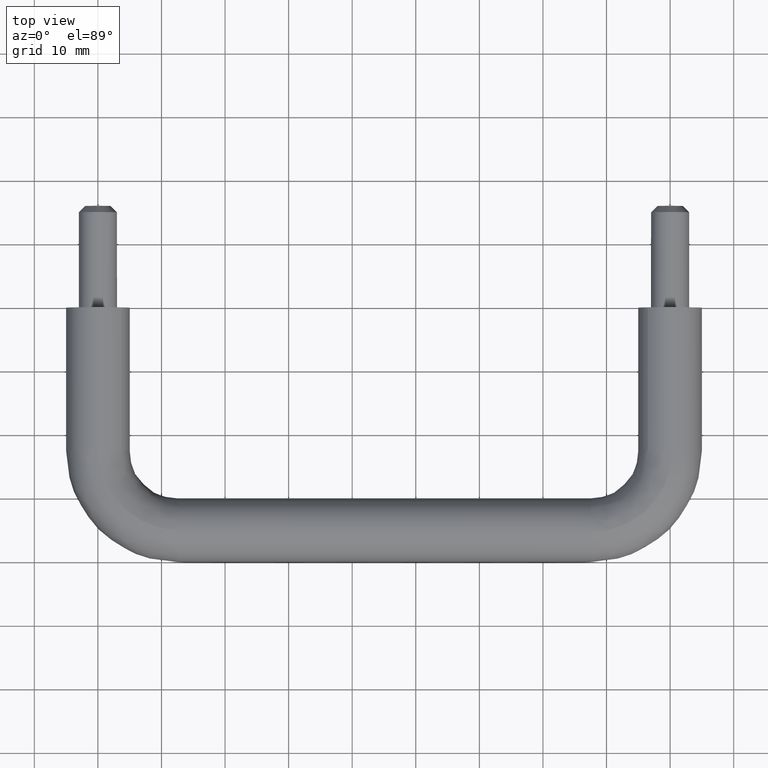
[diagram: clean part render]
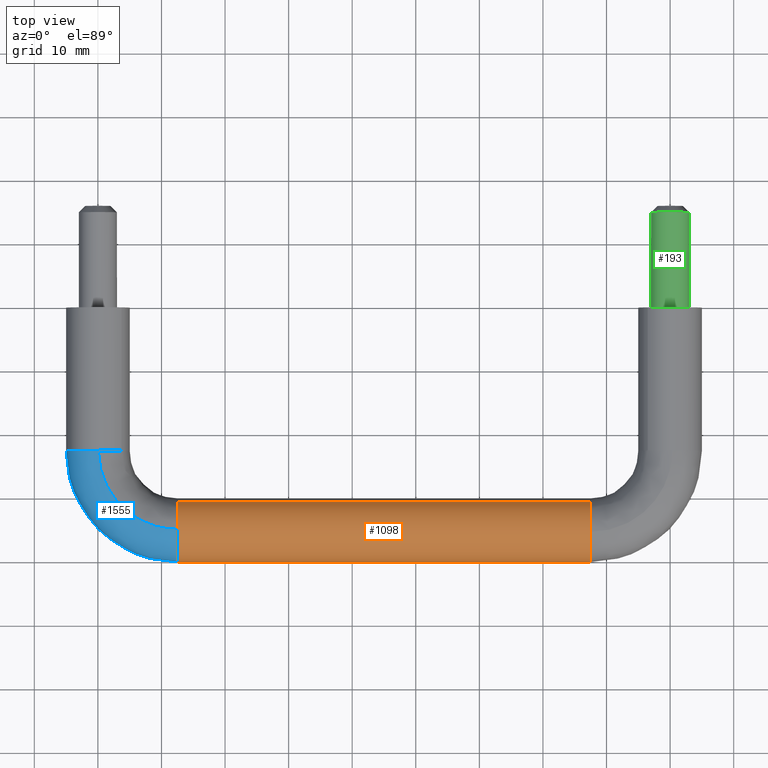
[diagram: same view with three faces highlighted in distinct colors, each labeled with its STEP entity id]
A machine part, top view with three faces highlighted in distinct colors.
Their STEP definitions:

[orange] entity #1098 — the highlighted face is a freeform B-spline surface patch.
#928=CARTESIAN_POINT('',(10.874999999495580,-30.521972536820851,2.224245948408881));
#929=CARTESIAN_POINT('',(10.874999999495580,-30.856101220587441,2.896940181352409));
#930=CARTESIAN_POINT('',(10.874999999495580,-31.373128144938558,3.441772878468769));
#931=CARTESIAN_POINT('',(10.874999999495580,-34.814901023407330,7.068644733530205));
#932=CARTESIAN_POINT('',(10.874999999495580,-38.441772878468768,3.626871855061437));
#933=CARTESIAN_POINT('',(10.874999999495580,-42.068644733530206,0.185098976592668));
#934=CARTESIAN_POINT('',(10.874999999495580,-38.626871855061438,-3.441772878468769));
#935=CARTESIAN_POINT('',(10.874999999495580,-35.185098976592663,-7.068644733530205));
#936=CARTESIAN_POINT('',(10.874999999495580,-31.558227121531232,-3.626871855061437));
#937=CARTESIAN_POINT('',(79.165625002282297,-30.521972536820840,2.224245948408881));
#938=CARTESIAN_POINT('',(79.165625002282297,-30.856101220587430,2.896940181352409));
#939=CARTESIAN_POINT('',(79.165625002282297,-31.373128144938558,3.441772878468769));
#940=CARTESIAN_POINT('',(79.165625002282297,-34.814901023407316,7.068644733530205));
#941=CARTESIAN_POINT('',(79.165625002282297,-38.441772878468761,3.626871855061437));
#942=CARTESIAN_POINT('',(79.165625002282297,-42.068644733530206,0.185098976592668));
#943=CARTESIAN_POINT('',(79.165625002282297,-38.626871855061431,-3.441772878468769));
#944=CARTESIAN_POINT('',(79.165625002282297,-35.185098976592663,-7.068644733530205));
#945=CARTESIAN_POINT('',(79.165625002282297,-31.558227121531232,-3.626871855061437));
#953=(BOUNDED_SURFACE()B_SPLINE_SURFACE(2,1,((#928,#937),(#929,#938),(#930,#939),(#931,#940),(#932,#941),(#933,#942),(#934,#943),(#935,#944),(#936,#945)),.UNSPECIFIED.,.F.,.F.,.U.)B_SPLINE_SURFACE_WITH_KNOTS((3,2,2,2,3),(2,2),(0.0,1.656854249492380,9.941125496954278,18.225396744416180,26.509667991878079),(0.0,68.290625002786726),.UNSPECIFIED.)GEOMETRIC_REPRESENTATION_ITEM()RATIONAL_B_SPLINE_SURFACE(((0.906274169979695,0.906274169979695),(0.941421356237309,0.941421356237309),(1.0,1.0),(0.707106781186548,0.707106781186548),(1.0,1.0),(0.707106781186548,0.707106781186548),(1.0,1.0),(0.707106781186548,0.707106781186548),(1.0,1.0)))REPRESENTATION_ITEM('')SURFACE());
#954=CARTESIAN_POINT('',(77.500000000000028,-30.521972536830301,2.224245948427894));
#955=VERTEX_POINT('',#954);
#956=CARTESIAN_POINT('',(77.500000002214335,-35.348666259479671,4.987828369090145));
#957=VERTEX_POINT('',#956);
#958=CARTESIAN_POINT('',(77.500000000000014,-30.521972536830297,2.224245948427894));
#959=CARTESIAN_POINT('',(77.500000000000014,-31.900695591542707,5.000000000000001));
#960=CARTESIAN_POINT('',(77.500000000000000,-35.0,5.0));
#961=CARTESIAN_POINT('',(77.500000000000014,-35.174545580981878,5.0));
#962=CARTESIAN_POINT('',(77.500000002214335,-35.348666259479671,4.987828369090145));
#970=(BOUNDED_CURVE()B_SPLINE_CURVE(2,(#958,#959,#960,#961,#962),.UNSPECIFIED.,.F.,.U.)B_SPLINE_CURVE_WITH_KNOTS((3,2,3),(0.575619190623714,0.750000000000000,0.762166313575372),.UNSPECIFIED.)CURVE()GEOMETRIC_REPRESENTATION_ITEM()RATIONAL_B_SPLINE_CURVE((0.876408099967338,0.795700173769938,1.0,0.985746277023262,0.972879876153337))REPRESENTATION_ITEM(''));
#971=EDGE_CURVE('',#955,#957,#970,.T.);
#972=ORIENTED_EDGE('',*,*,#971,.F.);
#973=CARTESIAN_POINT('',(12.499999999953680,-30.521972536862169,2.224245948412617));
#974=VERTEX_POINT('',#973);
#975=CARTESIAN_POINT('',(12.499999999953680,-30.521972536862169,2.224245948412617));
#976=CARTESIAN_POINT('',(77.500000000000028,-30.521972536830301,2.224245948427894));
#977=QUASI_UNIFORM_CURVE('',1,(#975,#976),.UNSPECIFIED.,.F.,.U.);
#978=EDGE_CURVE('',#974,#955,#977,.T.);
#979=ORIENTED_EDGE('',*,*,#978,.F.);
#980=CARTESIAN_POINT('',(12.499999999561890,-34.937169799832191,4.999605221009642));
#981=VERTEX_POINT('',#980);
#982=CARTESIAN_POINT('',(12.499999999953678,-30.521972536862165,2.224245948412617));
#983=CARTESIAN_POINT('',(12.499999999833049,-31.881425326449012,4.961203581133596));
#984=CARTESIAN_POINT('',(12.499999999561895,-34.937169799832198,4.999605221009642));
#992=(BOUNDED_CURVE()B_SPLINE_CURVE(2,(#982,#983,#984),.UNSPECIFIED.,.F.,.U.)B_SPLINE_CURVE_WITH_KNOTS((3,3),(0.575619190622622,0.747784295868891),.UNSPECIFIED.)CURVE()GEOMETRIC_REPRESENTATION_ITEM()RATIONAL_B_SPLINE_CURVE((0.876408099968349,0.796725658660789,0.994854295522402))REPRESENTATION_ITEM(''));
#993=EDGE_CURVE('',#974,#981,#992,.T.);
#994=ORIENTED_EDGE('',*,*,#993,.T.);
#995=CARTESIAN_POINT('',(12.500000000000000,-40.0,0.0));
#996=VERTEX_POINT('',#995);
#997=CARTESIAN_POINT('',(12.499999999561897,-34.937169799832191,4.999605221009642));
#998=CARTESIAN_POINT('',(12.500000000000004,-34.968583659289422,5.0));
#999=CARTESIAN_POINT('',(12.500000000000000,-35.0,5.0));
#1000=CARTESIAN_POINT('',(12.500000000000000,-39.999999999999993,5.000000000000001));
#1001=CARTESIAN_POINT('',(12.500000000000000,-40.0,0.0));
#1009=(BOUNDED_CURVE()B_SPLINE_CURVE(2,(#997,#998,#999,#1000,#1001),.UNSPECIFIED.,.F.,.U.)B_SPLINE_CURVE_WITH_KNOTS((3,2,3),(0.747784295868891,0.750000000000000,1.0),.UNSPECIFIED.)CURVE()GEOMETRIC_REPRESENTATION_ITEM()RATIONAL_B_SPLINE_CURVE((0.994854295522401,0.997404141140404,1.0,0.707106781186548,1.0))REPRESENTATION_ITEM(''));
#1010=EDGE_CURVE('',#981,#996,#1009,.T.);
#1011=ORIENTED_EDGE('',*,*,#1010,.T.);
#1012=CARTESIAN_POINT('',(12.499999999937820,-35.348666258244499,-4.987828369176487));
#1013=VERTEX_POINT('',#1012);
#1014=CARTESIAN_POINT('',(12.500000000000000,-40.0,0.0));
#1015=CARTESIAN_POINT('',(12.499999999999998,-40.000000000000007,-4.662684235644725));
#1016=CARTESIAN_POINT('',(12.499999999937819,-35.348666258244492,-4.987828369176487));
#1024=(BOUNDED_CURVE()B_SPLINE_CURVE(2,(#1014,#1015,#1016),.UNSPECIFIED.,.F.,.U.)B_SPLINE_CURVE_WITH_KNOTS((3,3),(0.0,0.237833686509806),.UNSPECIFIED.)CURVE()GEOMETRIC_REPRESENTATION_ITEM()RATIONAL_B_SPLINE_CURVE((1.0,0.721360504063494,0.972879876333494))REPRESENTATION_ITEM(''));
#1025=EDGE_CURVE('',#996,#1013,#1024,.T.);
#1026=ORIENTED_EDGE('',*,*,#1025,.T.);
#1027=CARTESIAN_POINT('',(12.500000000000000,-31.558228069350712,-3.626872754508066));
#1028=VERTEX_POINT('',#1027);
#1029=CARTESIAN_POINT('',(12.499999999937817,-35.348666258244492,-4.987828369176487));
#1030=CARTESIAN_POINT('',(12.499999999999995,-35.174545579742194,-5.000000000000001));
#1031=CARTESIAN_POINT('',(12.500000000000000,-35.0,-5.0));
#1032=CARTESIAN_POINT('',(12.499999999999995,-33.005203027452310,-5.0));
#1033=CARTESIAN_POINT('',(12.500000000000007,-31.558228069350704,-3.626872754508066));
#1041=(BOUNDED_CURVE()B_SPLINE_CURVE(2,(#1029,#1030,#1031,#1032,#1033),.UNSPECIFIED.,.F.,.U.)B_SPLINE_CURVE_WITH_KNOTS((3,2,3),(0.237833686509806,0.250000000000000,0.371049487220299),.UNSPECIFIED.)CURVE()GEOMETRIC_REPRESENTATION_ITEM()RATIONAL_B_SPLINE_CURVE((0.972879876333494,0.985746277123054,1.0,0.858181704209315,0.853699664289983))REPRESENTATION_ITEM(''));
#1042=EDGE_CURVE('',#1013,#1028,#1041,.T.);
#1043=ORIENTED_EDGE('',*,*,#1042,.T.);
#1044=CARTESIAN_POINT('',(77.500000000186986,-31.558227959531859,-3.626872650146366));
#1045=VERTEX_POINT('',#1044);
#1046=CARTESIAN_POINT('',(12.500000000000000,-31.558228069350712,-3.626872754508066));
#1047=CARTESIAN_POINT('',(77.500000000186986,-31.558227959531859,-3.626872650146366));
#1048=QUASI_UNIFORM_CURVE('',1,(#1046,#1047),.UNSPECIFIED.,.F.,.U.);
#1049=EDGE_CURVE('',#1028,#1045,#1048,.T.);
#1050=ORIENTED_EDGE('',*,*,#1049,.T.);
#1051=CARTESIAN_POINT('',(77.500000000592394,-34.937169799584353,-4.999605221006526));
#1052=VERTEX_POINT('',#1051);
#1053=CARTESIAN_POINT('',(77.500000000592394,-34.937169799584353,-4.999605221006526));
#1054=CARTESIAN_POINT('',(77.500000000357417,-32.978853147400088,-4.974994991948138));
#1055=CARTESIAN_POINT('',(77.500000000186972,-31.558227959531862,-3.626872650146367));
#1063=(BOUNDED_CURVE()B_SPLINE_CURVE(2,(#1053,#1054,#1055),.UNSPECIFIED.,.F.,.U.)B_SPLINE_CURVE_WITH_KNOTS((3,3),(0.252215704148546,0.371049491799913),.UNSPECIFIED.)CURVE()GEOMETRIC_REPRESENTATION_ITEM()RATIONAL_B_SPLINE_CURVE((0.994854295482269,0.858099659149629,0.853699663950849))REPRESENTATION_ITEM(''));
#1064=EDGE_CURVE('',#1052,#1045,#1063,.T.);
#1065=ORIENTED_EDGE('',*,*,#1064,.F.);
#1066=CARTESIAN_POINT('',(77.500000000000000,-40.0,0.0));
#1067=VERTEX_POINT('',#1066);
#1068=CARTESIAN_POINT('',(77.500000000000000,-40.0,0.0));
#1069=CARTESIAN_POINT('',(77.500000000000014,-39.999999999999993,-5.000000000000001));
#1070=CARTESIAN_POINT('',(77.500000000000000,-35.0,-5.0));
#1071=CARTESIAN_POINT('',(77.500000000000000,-34.968583659041542,-4.999999999999999));
#1072=CARTESIAN_POINT('',(77.500000000592394,-34.937169799584353,-4.999605221006526));
#1080=(BOUNDED_CURVE()B_SPLINE_CURVE(2,(#1068,#1069,#1070,#1071,#1072),.UNSPECIFIED.,.F.,.U.)B_SPLINE_CURVE_WITH_KNOTS((3,2,3),(0.0,0.250000000000000,0.252215704148546),.UNSPECIFIED.)CURVE()GEOMETRIC_REPRESENTATION_ITEM()RATIONAL_B_SPLINE_CURVE((1.0,0.707106781186548,1.0,0.997404141119977,0.994854295482269))REPRESENTATION_ITEM(''));
#1081=EDGE_CURVE('',#1067,#1052,#1080,.T.);
#1082=ORIENTED_EDGE('',*,*,#1081,.F.);
#1083=CARTESIAN_POINT('',(77.500000002214335,-35.348666259479678,4.987828369090145));
#1084=CARTESIAN_POINT('',(77.500000000000000,-39.999999999999993,4.662684233329788));
#1085=CARTESIAN_POINT('',(77.500000000000000,-40.0,0.0));
#1093=(BOUNDED_CURVE()B_SPLINE_CURVE(2,(#1083,#1084,#1085),.UNSPECIFIED.,.F.,.U.)B_SPLINE_CURVE_WITH_KNOTS((3,3),(0.762166313575372,1.0),.UNSPECIFIED.)CURVE()GEOMETRIC_REPRESENTATION_ITEM()RATIONAL_B_SPLINE_CURVE((0.972879876153335,0.721360504163286,1.0))REPRESENTATION_ITEM(''));
#1094=EDGE_CURVE('',#957,#1067,#1093,.T.);
#1095=ORIENTED_EDGE('',*,*,#1094,.F.);
#1096=EDGE_LOOP('',(#972,#979,#994,#1011,#1026,#1043,#1050,#1065,#1082,#1095));
#1097=FACE_OUTER_BOUND('',#1096,.T.);
#1098=ADVANCED_FACE('',(#1097),#953,.T.);

[blue] entity #1555 — the highlighted face is a freeform B-spline surface patch.
#980=CARTESIAN_POINT('',(12.499999999561890,-34.937169799832191,4.999605221009642));
#981=VERTEX_POINT('',#980);
#995=CARTESIAN_POINT('',(12.500000000000000,-40.0,0.0));
#996=VERTEX_POINT('',#995);
#997=CARTESIAN_POINT('',(12.499999999561897,-34.937169799832191,4.999605221009642));
#998=CARTESIAN_POINT('',(12.500000000000004,-34.968583659289422,5.0));
#999=CARTESIAN_POINT('',(12.500000000000000,-35.0,5.0));
#1000=CARTESIAN_POINT('',(12.500000000000000,-39.999999999999993,5.000000000000001));
#1001=CARTESIAN_POINT('',(12.500000000000000,-40.0,0.0));
#1009=(BOUNDED_CURVE()B_SPLINE_CURVE(2,(#997,#998,#999,#1000,#1001),.UNSPECIFIED.,.F.,.U.)B_SPLINE_CURVE_WITH_KNOTS((3,2,3),(0.747784295868891,0.750000000000000,1.0),.UNSPECIFIED.)CURVE()GEOMETRIC_REPRESENTATION_ITEM()RATIONAL_B_SPLINE_CURVE((0.994854295522401,0.997404141140404,1.0,0.707106781186548,1.0))REPRESENTATION_ITEM(''));
#1010=EDGE_CURVE('',#981,#996,#1009,.T.);
#1012=CARTESIAN_POINT('',(12.499999999937820,-35.348666258244499,-4.987828369176487));
#1013=VERTEX_POINT('',#1012);
#1014=CARTESIAN_POINT('',(12.500000000000000,-40.0,0.0));
#1015=CARTESIAN_POINT('',(12.499999999999998,-40.000000000000007,-4.662684235644725));
#1016=CARTESIAN_POINT('',(12.499999999937819,-35.348666258244492,-4.987828369176487));
#1024=(BOUNDED_CURVE()B_SPLINE_CURVE(2,(#1014,#1015,#1016),.UNSPECIFIED.,.F.,.U.)B_SPLINE_CURVE_WITH_KNOTS((3,3),(0.0,0.237833686509806),.UNSPECIFIED.)CURVE()GEOMETRIC_REPRESENTATION_ITEM()RATIONAL_B_SPLINE_CURVE((1.0,0.721360504063494,0.972879876333494))REPRESENTATION_ITEM(''));
#1025=EDGE_CURVE('',#996,#1013,#1024,.T.);
#1291=CARTESIAN_POINT('',(-0.348666258442994,-22.500000000118920,-4.987828369162610));
#1292=VERTEX_POINT('',#1291);
#1308=CARTESIAN_POINT('',(-4.999999999999997,-22.500000000000000,0.0));
#1309=VERTEX_POINT('',#1308);
#1310=CARTESIAN_POINT('',(-4.999999999999997,-22.500000000000000,0.0));
#1311=CARTESIAN_POINT('',(-4.999999999999996,-22.500000000000000,-4.662684235272704));
#1312=CARTESIAN_POINT('',(-0.348666258442994,-22.500000000118924,-4.987828369162610));
#1320=(BOUNDED_CURVE()B_SPLINE_CURVE(2,(#1310,#1311,#1312),.UNSPECIFIED.,.F.,.U.)B_SPLINE_CURVE_WITH_KNOTS((3,3),(0.0,0.237833686496117),.UNSPECIFIED.)CURVE()GEOMETRIC_REPRESENTATION_ITEM()RATIONAL_B_SPLINE_CURVE((1.0,0.721360504079531,0.972879876304542))REPRESENTATION_ITEM(''));
#1321=EDGE_CURVE('',#1309,#1292,#1320,.T.);
#1323=CARTESIAN_POINT('',(0.062830200757490,-22.500000000747580,4.999605221002231));
#1324=VERTEX_POINT('',#1323);
#1325=CARTESIAN_POINT('',(0.062830200757490,-22.500000000747587,4.999605221002231));
#1326=CARTESIAN_POINT('',(0.031416341300333,-22.500000000000004,4.999999999999999));
#1327=CARTESIAN_POINT('',(2.755364E-015,-22.500000000000000,5.0));
#1328=CARTESIAN_POINT('',(-4.999999999999997,-22.500000000000000,5.000000000000001));
#1329=CARTESIAN_POINT('',(-4.999999999999997,-22.500000000000000,0.0));
#1337=(BOUNDED_CURVE()B_SPLINE_CURVE(2,(#1325,#1326,#1327,#1328,#1329),.UNSPECIFIED.,.F.,.U.)B_SPLINE_CURVE_WITH_KNOTS((3,2,3),(0.747784295827405,0.750000000000000,1.0),.UNSPECIFIED.)CURVE()GEOMETRIC_REPRESENTATION_ITEM()RATIONAL_B_SPLINE_CURVE((0.994854295426917,0.997404141091801,1.0,0.707106781186548,1.0))REPRESENTATION_ITEM(''));
#1338=EDGE_CURVE('',#1324,#1309,#1337,.T.);
#1494=CARTESIAN_POINT('',(-0.246043598944643,-21.616309977390664,-4.992863235060632));
#1495=CARTESIAN_POINT('',(-1.262163499757615,-36.272476988617520,-4.992863235060630));
#1496=CARTESIAN_POINT('',(13.393238194958149,-35.245378025359820,-4.992863235060632));
#1497=CARTESIAN_POINT('',(-0.281871249908219,-21.613826027179417,-4.990352747809004));
#1498=CARTESIAN_POINT('',(-1.300847345968043,-36.311189824849528,-4.990352747809002));
#1499=CARTESIAN_POINT('',(13.395748983974981,-35.281203805473211,-4.990352747809003));
#1500=CARTESIAN_POINT('',(-5.016890184537566,-21.285544630923653,-4.658564189198486));
#1501=CARTESIAN_POINT('',(-6.413343960855873,-41.427517790591814,-4.658564189198486));
#1502=CARTESIAN_POINT('',(13.727577424182968,-40.015975486631149,-4.658564189198487));
#1503=CARTESIAN_POINT('',(-4.957698358406729,-21.289648431900471,0.062830199416762));
#1504=CARTESIAN_POINT('',(-6.349433337709312,-41.363559272250576,0.062830199416762));
#1505=CARTESIAN_POINT('',(13.723429282093315,-39.956786751382239,0.062830199416762));
#1506=CARTESIAN_POINT('',(-4.895018620471904,-21.293994051668907,5.062435420435840));
#1507=CARTESIAN_POINT('',(-6.281756744978027,-41.295831962073215,5.062435420435841));
#1508=CARTESIAN_POINT('',(13.719036708386920,-39.894110286461306,5.062435420435841));
#1509=CARTESIAN_POINT('',(0.127900379634209,-21.642235713507890,4.999160710041827));
#1510=CARTESIAN_POINT('',(-0.858408551565055,-35.868419462842546,4.999160710041827));
#1511=CARTESIAN_POINT('',(13.367032334147423,-34.871453573407599,4.999160710041828));
#1512=CARTESIAN_POINT('',(0.162980664512476,-21.644667848428536,4.998718796710921));
#1513=CARTESIAN_POINT('',(-0.820531651775323,-35.830514177764115,4.998718796710921));
#1514=CARTESIAN_POINT('',(13.364573920279618,-34.836375120353509,4.998718796710921));
#1522=(BOUNDED_SURFACE()B_SPLINE_SURFACE(2,2,((#1494,#1497,#1500,#1503,#1506,#1509,#1512),(#1495,#1498,#1501,#1504,#1507,#1510,#1513),(#1496,#1499,#1502,#1505,#1508,#1511,#1514)),.UNSPECIFIED.,.F.,.F.,.U.)B_SPLINE_SURFACE_WITH_KNOTS((3,3),(3,1,2,1,3),(0.0,31.890571891225530),(0.0,0.083144420401435,8.036044817964854,16.320316065426749,16.403446091938751),.UNSPECIFIED.)GEOMETRIC_REPRESENTATION_ITEM()RATIONAL_B_SPLINE_SURFACE(((0.905744038428786,0.903251937573323,0.662386295974072,0.921487970695580,0.651590392860676,0.924196307027254,0.926904643358928),(0.591078789901803,0.589452471763937,0.432266152092013,0.601353110281207,0.425220862167464,0.603120541358479,0.604887972435751),(0.895737634068972,0.893273065240005,0.655068439230114,0.911307631818076,0.644391806205615,0.913986047214776,0.916664462611475)))REPRESENTATION_ITEM('')SURFACE());
#1523=ORIENTED_EDGE('',*,*,#1025,.F.);
#1524=ORIENTED_EDGE('',*,*,#1010,.F.);
#1525=CARTESIAN_POINT('',(0.062830200757490,-22.500000000747580,4.999605221002231));
#1526=CARTESIAN_POINT('',(0.062830200911937,-34.937169799707000,4.999605221019078));
#1527=CARTESIAN_POINT('',(12.499999999561899,-34.937169799832198,4.999605221009642));
#1535=(BOUNDED_CURVE()B_SPLINE_CURVE(2,(#1525,#1526,#1527),.UNSPECIFIED.,.F.,.U.)B_SPLINE_CURVE_WITH_KNOTS((3,3),(-1.747842683543663,-0.278273131019156),.UNSPECIFIED.)CURVE()GEOMETRIC_REPRESENTATION_ITEM()RATIONAL_B_SPLINE_CURVE((0.893710737918789,0.628668022924493,0.884455039429879))REPRESENTATION_ITEM(''));
#1536=EDGE_CURVE('',#1324,#981,#1535,.T.);
#1537=ORIENTED_EDGE('',*,*,#1536,.F.);
#1538=ORIENTED_EDGE('',*,*,#1338,.T.);
#1539=ORIENTED_EDGE('',*,*,#1321,.T.);
#1540=CARTESIAN_POINT('',(-0.348666258442994,-22.500000000118920,-4.987828369162610));
#1541=CARTESIAN_POINT('',(-0.348666257639366,-35.348666257752846,-4.987828369202161));
#1542=CARTESIAN_POINT('',(12.499999999937815,-35.348666258244499,-4.987828369176488));
#1550=(BOUNDED_CURVE()B_SPLINE_CURVE(2,(#1540,#1541,#1542),.UNSPECIFIED.,.F.,.U.)B_SPLINE_CURVE_WITH_KNOTS((3,3),(-1.747842683649903,-0.278273130956331),.UNSPECIFIED.)CURVE()GEOMETRIC_REPRESENTATION_ITEM()RATIONAL_B_SPLINE_CURVE((0.873607430585968,0.614526639153945,0.864559931606567))REPRESENTATION_ITEM(''));
#1551=EDGE_CURVE('',#1292,#1013,#1550,.T.);
#1552=ORIENTED_EDGE('',*,*,#1551,.T.);
#1553=EDGE_LOOP('',(#1523,#1524,#1537,#1538,#1539,#1552));
#1554=FACE_OUTER_BOUND('',#1553,.T.);
#1555=ADVANCED_FACE('',(#1554),#1522,.T.);

[green] entity #193 — the highlighted face is a freeform B-spline surface patch.
#44=CARTESIAN_POINT('',(92.281217896800086,15.374999999999821,-1.948344144990550));
#45=CARTESIAN_POINT('',(94.229562041790643,15.374999999999831,0.332873751809542));
#46=CARTESIAN_POINT('',(91.948344144990557,15.374999999999821,2.281217896800092));
#47=CARTESIAN_POINT('',(89.667126248190485,15.374999999999817,4.229562041790642));
#48=CARTESIAN_POINT('',(87.718782103199914,15.374999999999821,1.948344144990550));
#49=CARTESIAN_POINT('',(85.770437958209357,15.374999999999817,-0.332873751809542));
#50=CARTESIAN_POINT('',(88.051655855009443,15.374999999999821,-2.281217896800092));
#51=CARTESIAN_POINT('',(92.281217896800101,-0.384374999999986,-1.948344144990550));
#52=CARTESIAN_POINT('',(94.229562041790658,-0.384374999999984,0.332873751809542));
#53=CARTESIAN_POINT('',(91.948344144990571,-0.384374999999986,2.281217896800092));
#54=CARTESIAN_POINT('',(89.667126248190485,-0.384374999999988,4.229562041790642));
#55=CARTESIAN_POINT('',(87.718782103199928,-0.384374999999990,1.948344144990550));
#56=CARTESIAN_POINT('',(85.770437958209357,-0.384374999999992,-0.332873751809542));
#57=CARTESIAN_POINT('',(88.051655855009457,-0.384374999999990,-2.281217896800092));
#65=(BOUNDED_SURFACE()B_SPLINE_SURFACE(2,1,((#44,#51),(#45,#52),(#46,#53),(#47,#54),(#48,#55),(#49,#56),(#50,#57)),.UNSPECIFIED.,.F.,.F.,.U.)B_SPLINE_SURFACE_WITH_KNOTS((3,2,2,3),(2,2),(0.0,4.970562748477141,9.941125496954282,14.911688245431421),(0.0,15.759374999999810),.UNSPECIFIED.)GEOMETRIC_REPRESENTATION_ITEM()RATIONAL_B_SPLINE_SURFACE(((1.0,1.0),(0.707106781186548,0.707106781186548),(1.0,1.0),(0.707106781186548,0.707106781186548),(1.0,1.0),(0.707106781186548,0.707106781186548),(1.0,1.0)))REPRESENTATION_ITEM('')SURFACE());
#66=CARTESIAN_POINT('',(93.0,1.040834E-014,0.0));
#67=VERTEX_POINT('',#66);
#68=CARTESIAN_POINT('',(92.281218231411302,5.787038E-015,-1.948343753211020));
#69=VERTEX_POINT('',#68);
#70=CARTESIAN_POINT('',(93.0,1.040834E-014,0.0));
#71=CARTESIAN_POINT('',(93.0,1.040834E-014,-1.106757845982614));
#72=CARTESIAN_POINT('',(92.281218231411302,5.787038E-015,-1.948343753211020));
#80=(BOUNDED_CURVE()B_SPLINE_CURVE(2,(#70,#71,#72),.UNSPECIFIED.,.F.,.U.)B_SPLINE_CURVE_WITH_KNOTS((3,3),(0.0,0.113143109441826),.UNSPECIFIED.)CURVE()GEOMETRIC_REPRESENTATION_ITEM()RATIONAL_B_SPLINE_CURVE((1.0,0.867444601956084,0.854871043176068))REPRESENTATION_ITEM(''));
#81=EDGE_CURVE('',#67,#69,#80,.T.);
#82=ORIENTED_EDGE('',*,*,#81,.T.);
#83=CARTESIAN_POINT('',(92.281218227280988,14.999999999999821,-1.948343758047013));
#84=VERTEX_POINT('',#83);
#85=CARTESIAN_POINT('',(92.281218227280988,14.999999999999821,-1.948343758047013));
#86=CARTESIAN_POINT('',(92.281218231411302,5.787038E-015,-1.948343753211020));
#87=QUASI_UNIFORM_CURVE('',1,(#85,#86),.UNSPECIFIED.,.F.,.U.);
#88=EDGE_CURVE('',#84,#69,#87,.T.);
#89=ORIENTED_EDGE('',*,*,#88,.F.);
#90=CARTESIAN_POINT('',(92.990752001225701,14.999999999934600,0.235377287681659));
#91=VERTEX_POINT('',#90);
#92=CARTESIAN_POINT('',(92.990752001225701,14.999999999934596,0.235377287681659));
#93=CARTESIAN_POINT('',(93.0,14.999999999999828,0.117870321518296));
#94=CARTESIAN_POINT('',(93.0,14.999999999999821,0.0));
#95=CARTESIAN_POINT('',(92.999999999999986,14.999999999999824,-1.106757853207942));
#96=CARTESIAN_POINT('',(92.281218227280974,14.999999999999822,-1.948343758047013));
#104=(BOUNDED_CURVE()B_SPLINE_CURVE(2,(#92,#93,#94,#95,#96),.UNSPECIFIED.,.F.,.U.)B_SPLINE_CURVE_WITH_KNOTS((3,2,3),(0.736331300576251,0.750000000000000,0.863143110082556),.UNSPECIFIED.)CURVE()GEOMETRIC_REPRESENTATION_ITEM()RATIONAL_B_SPLINE_CURVE((0.969723356053872,0.983986122515139,1.0,0.867444601205422,0.854871043033660))REPRESENTATION_ITEM(''));
#105=EDGE_CURVE('',#91,#84,#104,.T.);
#106=ORIENTED_EDGE('',*,*,#105,.F.);
#107=CARTESIAN_POINT('',(90.0,14.999999999999821,3.0));
#108=VERTEX_POINT('',#107);
#109=CARTESIAN_POINT('',(90.0,14.999999999999821,3.0));
#110=CARTESIAN_POINT('',(92.773171474057534,14.999999999999813,3.000000000000000));
#111=CARTESIAN_POINT('',(92.990752001225701,14.999999999934596,0.235377287681659));
#119=(BOUNDED_CURVE()B_SPLINE_CURVE(2,(#109,#110,#111),.UNSPECIFIED.,.F.,.U.)B_SPLINE_CURVE_WITH_KNOTS((3,3),(0.500000000000000,0.736331300576251),.UNSPECIFIED.)CURVE()GEOMETRIC_REPRESENTATION_ITEM()RATIONAL_B_SPLINE_CURVE((1.0,0.723120658671409,0.969723356053872))REPRESENTATION_ITEM(''));
#120=EDGE_CURVE('',#108,#91,#119,.T.);
#121=ORIENTED_EDGE('',*,*,#120,.F.);
#122=CARTESIAN_POINT('',(87.009247998774299,14.999999999934600,-0.235377287681659));
#123=VERTEX_POINT('',#122);
#124=CARTESIAN_POINT('',(87.009247998774299,14.999999999934595,-0.235377287681659));
#125=CARTESIAN_POINT('',(87.0,14.999999999999817,-0.117870321518295));
#126=CARTESIAN_POINT('',(87.0,14.999999999999821,0.0));
#127=CARTESIAN_POINT('',(87.0,14.999999999999826,3.0));
#128=CARTESIAN_POINT('',(90.0,14.999999999999821,3.0));
#136=(BOUNDED_CURVE()B_SPLINE_CURVE(2,(#124,#125,#126,#127,#128),.UNSPECIFIED.,.F.,.U.)B_SPLINE_CURVE_WITH_KNOTS((3,2,3),(0.236331300576251,0.250000000000000,0.500000000000000),.UNSPECIFIED.)CURVE()GEOMETRIC_REPRESENTATION_ITEM()RATIONAL_B_SPLINE_CURVE((0.969723356053872,0.983986122515139,1.0,0.707106781186548,1.0))REPRESENTATION_ITEM(''));
#137=EDGE_CURVE('',#123,#108,#136,.T.);
#138=ORIENTED_EDGE('',*,*,#137,.F.);
#139=CARTESIAN_POINT('',(88.051656154633520,14.999999999999829,-2.281218152703156));
#140=VERTEX_POINT('',#139);
#141=CARTESIAN_POINT('',(88.051656154633520,14.999999999999829,-2.281218152703156));
#142=CARTESIAN_POINT('',(87.106744500086805,14.999999999999824,-1.474187788364840));
#143=CARTESIAN_POINT('',(87.009247998774299,14.999999999934603,-0.235377287681659));
#151=(BOUNDED_CURVE()B_SPLINE_CURVE(2,(#141,#142,#143),.UNSPECIFIED.,.F.,.U.)B_SPLINE_CURVE_WITH_KNOTS((3,3),(0.113143121651661,0.236331300576251),.UNSPECIFIED.)CURVE()GEOMETRIC_REPRESENTATION_ITEM()RATIONAL_B_SPLINE_CURVE((0.854871040462319,0.841181190312961,0.969723356053872))REPRESENTATION_ITEM(''));
#152=EDGE_CURVE('',#140,#123,#151,.T.);
#153=ORIENTED_EDGE('',*,*,#152,.F.);
#154=CARTESIAN_POINT('',(88.051657107157425,9.756085E-015,-2.281218966234308));
#155=VERTEX_POINT('',#154);
#156=CARTESIAN_POINT('',(88.051656154633520,14.999999999999829,-2.281218152703156));
#157=CARTESIAN_POINT('',(88.051657107157425,9.756085E-015,-2.281218966234308));
#158=QUASI_UNIFORM_CURVE('',1,(#156,#157),.UNSPECIFIED.,.F.,.U.);
#159=EDGE_CURVE('',#140,#155,#158,.T.);
#160=ORIENTED_EDGE('',*,*,#159,.T.);
#161=CARTESIAN_POINT('',(87.0,1.040834E-014,0.0));
#162=VERTEX_POINT('',#161);
#163=CARTESIAN_POINT('',(88.051657107157425,9.756085E-015,-2.281218966234308));
#164=CARTESIAN_POINT('',(87.0,1.040834E-014,-1.383019941605592));
#165=CARTESIAN_POINT('',(87.0,1.040834E-014,0.0));
#173=(BOUNDED_CURVE()B_SPLINE_CURVE(2,(#163,#164,#165),.UNSPECIFIED.,.F.,.U.)B_SPLINE_CURVE_WITH_KNOTS((3,3),(0.363143078399773,0.500000000000000),.UNSPECIFIED.)CURVE()GEOMETRIC_REPRESENTATION_ITEM()RATIONAL_B_SPLINE_CURVE((0.854871050075465,0.839662142862437,1.0))REPRESENTATION_ITEM(''));
#174=EDGE_CURVE('',#155,#162,#173,.T.);
#175=ORIENTED_EDGE('',*,*,#174,.T.);
#176=CARTESIAN_POINT('',(87.0,1.040834E-014,0.0));
#177=CARTESIAN_POINT('',(87.0,1.040834E-014,3.0));
#178=CARTESIAN_POINT('',(90.0,1.040834E-014,3.0));
#179=CARTESIAN_POINT('',(93.0,1.040834E-014,3.0));
#180=CARTESIAN_POINT('',(93.0,1.040834E-014,0.0));
#188=(BOUNDED_CURVE()B_SPLINE_CURVE(2,(#176,#177,#178,#179,#180),.UNSPECIFIED.,.F.,.U.)B_SPLINE_CURVE_WITH_KNOTS((3,2,3),(0.500000000000000,0.750000000000000,1.0),.UNSPECIFIED.)CURVE()GEOMETRIC_REPRESENTATION_ITEM()RATIONAL_B_SPLINE_CURVE((1.0,0.707106781186548,1.0,0.707106781186548,1.0))REPRESENTATION_ITEM(''));
#189=EDGE_CURVE('',#162,#67,#188,.T.);
#190=ORIENTED_EDGE('',*,*,#189,.T.);
#191=EDGE_LOOP('',(#82,#89,#106,#121,#138,#153,#160,#175,#190));
#192=FACE_OUTER_BOUND('',#191,.T.);
#193=ADVANCED_FACE('',(#192),#65,.T.);